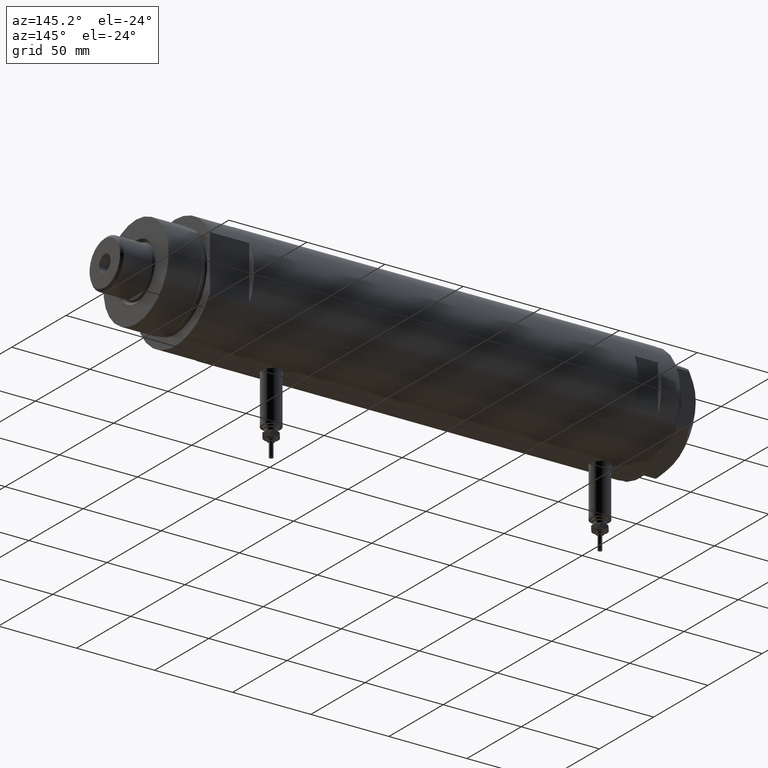
[diagram: clean part render]
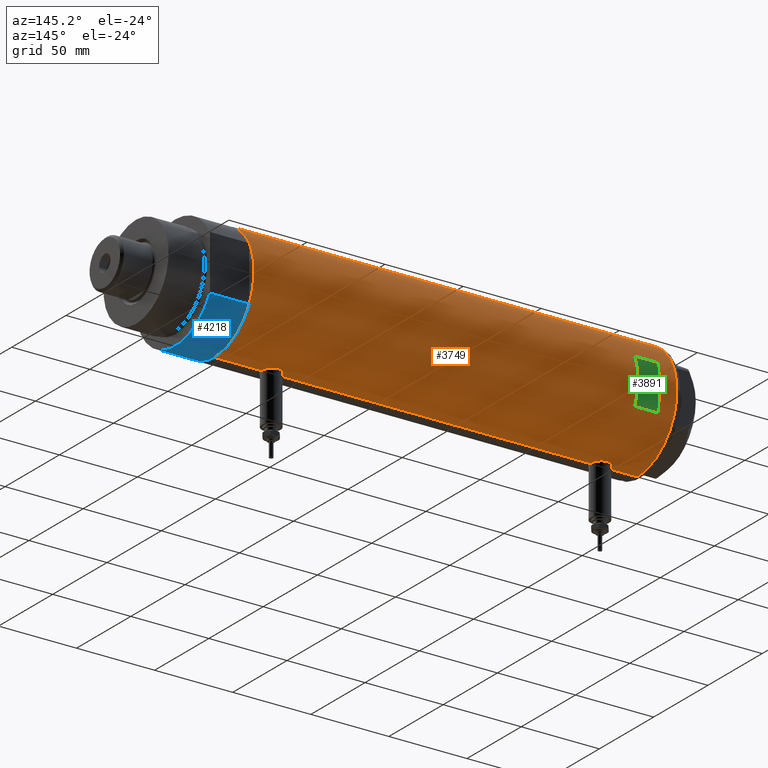
[diagram: same view with three faces highlighted in distinct colors, each labeled with its STEP entity id]
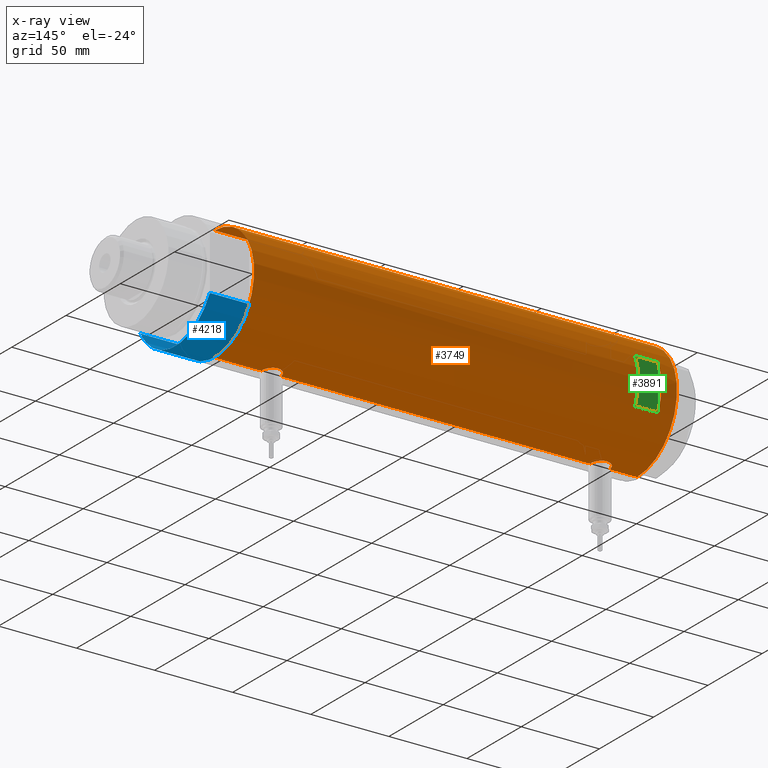
[diagram: x-ray of the same camera — body ghosted, the three highlighted faces saturated]
A machine part, auxiliary view with three faces highlighted in distinct colors.
The next image is the same camera in x-ray (body ghosted, the three faces saturated) — at least one of them is partly hidden behind the body in this view.
Their STEP definitions:

[orange] entity #3749 — the highlighted cylindrical surface (partial cylindrical patch) has radius 36.5 mm, axis along (-1, -0, 0).
#34 = CARTESIAN_POINT ( 'NONE',  ( -36.01679413914729366, 5.919813138266330377, 113.4149969104704070 ) ) ;
#36 = EDGE_CURVE ( 'NONE', #5706, #3498, #2652, .T. ) ;
#58 = CARTESIAN_POINT ( 'NONE',  ( -36.50000000000000000, 4.469960816887838430E-15, -135.4000000000000057 ) ) ;
#59 = CARTESIAN_POINT ( 'NONE',  ( -36.09617453667821252, 5.415318599347967776, 114.5270664267291068 ) ) ;
#67 = DIRECTION ( 'NONE',  ( 1.000000000000000000, 0.000000000000000000, 0.000000000000000000 ) ) ;
#69 = ORIENTED_EDGE ( 'NONE', *, *, #3238, .T. ) ;
#76 = CARTESIAN_POINT ( 'NONE',  ( -36.50000000000000000, 4.469960816887838430E-15, -135.4000000000000057 ) ) ;
#104 = LINE ( 'NONE', #5121, #1247 ) ;
#156 = CARTESIAN_POINT ( 'NONE',  ( 35.29999999999999716, 9.282241108697837362, 114.1202150475476316 ) ) ;
#186 = VERTEX_POINT ( 'NONE', #3992 ) ;
#193 = CARTESIAN_POINT ( 'NONE',  ( 0.000000000000000000, 0.000000000000000000, -135.4000000000000057 ) ) ;
#228 = EDGE_CURVE ( 'NONE', #4420, #3409, #774, .T. ) ;
#230 = CARTESIAN_POINT ( 'NONE',  ( 36.34070350304396868, 3.414301401755543974, 100.9976378262409327 ) ) ;
#256 = CARTESIAN_POINT ( 'NONE',  ( -36.44504802628534179, 2.011764947064737630, -93.17906355091479043 ) ) ;
#283 = AXIS2_PLACEMENT_3D ( 'NONE', #193, #2036, #2356 ) ;
#310 = ORIENTED_EDGE ( 'NONE', *, *, #4841, .T. ) ;
#317 = CARTESIAN_POINT ( 'NONE',  ( -36.36587679577595367, 3.131448301962863834, -104.5128246557361820 ) ) ;
#335 = CARTESIAN_POINT ( 'NONE',  ( 36.48988646280794512, 0.9921857666168139023, 120.3632811513442249 ) ) ;
#372 = CARTESIAN_POINT ( 'NONE',  ( 35.83170458557578542, 6.955065627744199119, -83.41058328087534335 ) ) ;
#373 = VECTOR ( 'NONE', #2858, 1000.000000000000000 ) ;
#388 = EDGE_CURVE ( 'NONE', #1485, #5266, #5818, .T. ) ;
#392 = CARTESIAN_POINT ( 'NONE',  ( -36.49999999999999289, 0.4083036190459308212, 105.1499999999999773 ) ) ;
#402 = CARTESIAN_POINT ( 'NONE',  ( 36.13018480315372472, 5.199168368309159405, -99.15646498208049309 ) ) ;
#407 = CARTESIAN_POINT ( 'NONE',  ( 36.50000000000000000, 0.000000000000000000, -135.4000000000000057 ) ) ;
#423 = CARTESIAN_POINT ( 'NONE',  ( -36.46598788992680085, 1.625721481788714895, 105.3512795328616249 ) ) ;
#440 = CARTESIAN_POINT ( 'NONE',  ( 36.50000000000000000, 0.000000000000000000, -135.4000000000000057 ) ) ;
#441 = EDGE_CURVE ( 'NONE', #2783, #5706, #2937, .T. ) ;
#477 = CARTESIAN_POINT ( 'NONE',  ( -36.35033317675380005, 3.306376218664579536, 106.0922928058394632 ) ) ;
#507 = CARTESIAN_POINT ( 'NONE',  ( -36.36688032967140316, 3.133094607697482825, 116.8233643263751134 ) ) ;
#515 = CARTESIAN_POINT ( 'NONE',  ( 0.000000000000000000, 0.000000000000000000, -135.4000000000000057 ) ) ;
#536 = EDGE_CURVE ( 'NONE', #186, #4674, #3697, .T. ) ;
#538 = CARTESIAN_POINT ( 'NONE',  ( 36.49999999999999289, 0.4961820988516178477, -80.59999999999998010 ) ) ;
#550 = EDGE_LOOP ( 'NONE', ( #2661, #4757, #3390, #1342 ) ) ;
#570 = CARTESIAN_POINT ( 'NONE',  ( 36.45954139109321801, 1.735915671103595681, -80.74863218852991054 ) ) ;
#652 = CARTESIAN_POINT ( 'NONE',  ( -36.47290054070997201, 1.420408912806973678, 117.4898698166001338 ) ) ;
#663 = AXIS2_PLACEMENT_3D ( 'NONE', #515, #4189, #67 ) ;
#673 = CARTESIAN_POINT ( 'NONE',  ( 36.45853166336080875, 1.985123042546145022, 100.5483732958226284 ) ) ;
#685 = EDGE_LOOP ( 'NONE', ( #69, #5350, #796, #310, #2423, #2203, #2155, #3178, #4937, #1431, #4490, #1675, #2591, #1403, #887, #3848 ) ) ;
#700 = CARTESIAN_POINT ( 'NONE',  ( -36.39638105034455151, 2.774378062517171006, -93.48456667300897038 ) ) ;
#721 = LINE ( 'NONE', #1125, #3954 ) ;
#759 = CARTESIAN_POINT ( 'NONE',  ( -36.19624103943463922, 4.708090268046848159, -94.96938778553862903 ) ) ;
#760 = CARTESIAN_POINT ( 'NONE',  ( 35.29999999999999716, 9.282241108697837362, 106.6797849524523656 ) ) ;
#774 = B_SPLINE_CURVE_WITH_KNOTS ( 'NONE', 3,
 ( #2156, #1111, #5701, #652, #1595, #5339, #1226, #3222, #507, #2285, #3620, #2767, #5019, #5045, #59, #2260, #4511, #34, #1360, #2232, #5890, #2798, #1868, #4632, #928, #4180, #5476, #1388, #4602, #3130, #4545, #4155, #4569, #5073, #477, #2340, #3678, #958, #1896, #423, #2678, #392, #4066 ),
 .UNSPECIFIED., .F., .F.,
 ( 4, 2, 2, 2, 2, 2, 2, 2, 1, 2, 2, 2, 2, 2, 2, 2, 2, 2, 2, 2, 2, 4 ),
 ( 1.558294008431693624E-18, 0.001223527801214140684, 0.001835291701821213954, 0.002447055602428288307, 0.003670583403642434413, 0.004894111204856580084, 0.006117639006070725756, 0.006729402906677815072, 0.007341166807284903520, 0.007952930707891993703, 0.008564694608499082151, 0.009788222409713260783, 0.01101175021092743941, 0.01223527801214161631, 0.01284704191274868568, 0.01345880581335575504, 0.01468233361456989725, 0.01590586141578403945, 0.01651762531639110881, 0.01712938921699818165, 0.01835291701821230650, 0.01957644481942643136 ),
 .UNSPECIFIED. ) ;
#786 = DIRECTION ( 'NONE',  ( -0.000000000000000000, -0.000000000000000000, -1.000000000000000000 ) ) ;
#791 = DIRECTION ( 'NONE',  ( 0.000000000000000000, 0.000000000000000000, 1.000000000000000000 ) ) ;
#793 = CARTESIAN_POINT ( 'NONE',  ( -35.98846897517730525, 6.089479646546502423, -97.67765108453481560 ) ) ;
#796 = ORIENTED_EDGE ( 'NONE', *, *, #5334, .F. ) ;
#800 = CARTESIAN_POINT ( 'NONE',  ( 0.000000000000000000, 0.000000000000000000, 110.3999999999999773 ) ) ;
#816 = CARTESIAN_POINT ( 'NONE',  ( 35.29999999999999716, 9.282241108697837362, -94.32021504754762020 ) ) ;
#817 = CARTESIAN_POINT ( 'NONE',  ( 35.72794581931695745, 7.469526493268205058, -83.94660203271737942 ) ) ;
#848 = CARTESIAN_POINT ( 'NONE',  ( 35.40502660484481368, 8.876998817796907915, -95.23098724071233789 ) ) ;
#851 = EDGE_CURVE ( 'NONE', #4119, #5266, #1217, .T. ) ;
#883 = CARTESIAN_POINT ( 'NONE',  ( 36.29611582693038940, 3.878758190381173421, -81.36955010900447860 ) ) ;
#887 = ORIENTED_EDGE ( 'NONE', *, *, #5910, .F. ) ;
#907 = CARTESIAN_POINT ( 'NONE',  ( 36.50000000000000000, 0.000000000000000000, -100.5999999999999801 ) ) ;
#928 = CARTESIAN_POINT ( 'NONE',  ( -35.99530513653993324, 6.049346314076207598, 109.7766741696416375 ) ) ;
#958 = CARTESIAN_POINT ( 'NONE',  ( -36.40902375114221456, 2.582415566883930591, 105.7047830853031058 ) ) ;
#970 = CARTESIAN_POINT ( 'NONE',  ( 36.34264078466112124, 3.418717136061403927, -81.18950965959248833 ) ) ;
#989 = CARTESIAN_POINT ( 'NONE',  ( 14.49137674618942917, 33.50000000000000000, 110.3999999999999773 ) ) ;
#1034 = CARTESIAN_POINT ( 'NONE',  ( 0.000000000000000000, 0.000000000000000000, 135.4000000000000057 ) ) ;
#1063 = B_SPLINE_CURVE_WITH_KNOTS ( 'NONE', 3,
 ( #1676, #4463, #2512, #3923, #5368, #256, #3893, #700, #4347, #1219, #3049, #759, #5748, #4918, #5717, #2152, #2065, #5779, #5275, #793, #2093, #1129, #5332, #3087, #5809, #4880, #2600, #3987, #3957, #4435, #1704, #1255, #2633, #3541, #3483, #317, #2041, #4823, #5306, #3415, #3867, #4848, #2538 ),
 .UNSPECIFIED., .F., .F.,
 ( 4, 2, 2, 2, 2, 2, 2, 2, 1, 2, 2, 2, 2, 2, 2, 2, 2, 2, 2, 2, 2, 4 ),
 ( 1.558294008431693624E-18, 0.001223527801214140684, 0.001835291701821213954, 0.002447055602428288307, 0.003670583403642434413, 0.004894111204856580084, 0.006117639006070725756, 0.006729402906677815072, 0.007341166807284903520, 0.007952930707891993703, 0.008564694608499082151, 0.009788222409713260783, 0.01101175021092743941, 0.01223527801214161631, 0.01284704191274868568, 0.01345880581335575504, 0.01468233361456989725, 0.01590586141578403945, 0.01651762531639110881, 0.01712938921699818165, 0.01835291701821230650, 0.01957644481942643136 ),
 .UNSPECIFIED. ) ;
#1111 = CARTESIAN_POINT ( 'NONE',  ( -36.50000000000000000, 0.4137727629436737664, 117.6500000000000057 ) ) ;
#1125 = CARTESIAN_POINT ( 'NONE',  ( 35.29999999999999716, 9.282241108697837362, -135.4000000000000057 ) ) ;
#1129 = CARTESIAN_POINT ( 'NONE',  ( -35.96094343308265451, 6.249843792257633091, -98.68912889655430831 ) ) ;
#1154 = AXIS2_PLACEMENT_3D ( 'NONE', #5557, #786, #1867 ) ;
#1190 = CARTESIAN_POINT ( 'NONE',  ( 35.93456089024232369, 6.410413305453381838, 102.7091403679585397 ) ) ;
#1217 = B_SPLINE_CURVE_WITH_KNOTS ( 'NONE', 3,
 ( #3510, #3484, #673, #4348, #230, #1586, #2539, #3924, #5307, #3542, #1190, #3088, #1256, #2123, #3958, #2153, #2066, #760 ),
 .UNSPECIFIED., .F., .F.,
 ( 4, 2, 2, 2, 2, 2, 2, 2, 4 ),
 ( 1.734723475976807094E-18, 0.002973648994175672518, 0.003717061242719596394, 0.004460473491263520704, 0.005947297988351386670, 0.007434122485439251769, 0.008920946982527117736, 0.01040777147961498283, 0.01189459597670284793 ),
 .UNSPECIFIED. ) ;
#1219 = CARTESIAN_POINT ( 'NONE',  ( -36.30200038006936580, 3.811959488093743520, -94.13027895163997982 ) ) ;
#1226 = CARTESIAN_POINT ( 'NONE',  ( -36.43371204571226230, 2.206934156026287841, 117.2509728167099468 ) ) ;
#1242 = CARTESIAN_POINT ( 'NONE',  ( 36.29611582693038940, 3.878758190381173421, 119.6304498909954930 ) ) ;
#1247 = VECTOR ( 'NONE', #4254, 1000.000000000000000 ) ;
#1255 = CARTESIAN_POINT ( 'NONE',  ( -36.19597718496778072, 4.710322426433902976, -103.2285161076201518 ) ) ;
#1256 = CARTESIAN_POINT ( 'NONE',  ( 35.72860827204725354, 7.471059959301281417, 103.7347484952559284 ) ) ;
#1309 = CARTESIAN_POINT ( 'NONE',  ( 36.50000000000000711, 1.005842003469123336, -100.5999999999999943 ) ) ;
#1336 = CARTESIAN_POINT ( 'NONE',  ( 35.72794581931695745, 7.469526493268205058, 117.0533979672826490 ) ) ;
#1342 = ORIENTED_EDGE ( 'NONE', *, *, #36, .F. ) ;
#1360 = CARTESIAN_POINT ( 'NONE',  ( -35.99700617875953412, 6.038972911021586398, 113.0233318579832229 ) ) ;
#1388 = CARTESIAN_POINT ( 'NONE',  ( -36.06690560274405044, 5.606949625760674571, 108.6311407604106876 ) ) ;
#1403 = ORIENTED_EDGE ( 'NONE', *, *, #5806, .T. ) ;
#1426 = DIRECTION ( 'NONE',  ( 0.000000000000000000, 0.000000000000000000, 1.000000000000000000 ) ) ;
#1431 = ORIENTED_EDGE ( 'NONE', *, *, #388, .T. ) ;
#1464 = CIRCLE ( 'NONE', #3675, 36.50000000000000000 ) ;
#1480 = VERTEX_POINT ( 'NONE', #4275 ) ;
#1483 = CARTESIAN_POINT ( 'NONE',  ( 36.48988646280794512, 0.9921857666168139023, -80.63671884865571826 ) ) ;
#1485 = VERTEX_POINT ( 'NONE', #3914 ) ;
#1487 = EDGE_CURVE ( 'NONE', #1485, #186, #3944, .T. ) ;
#1513 = VERTEX_POINT ( 'NONE', #3597 ) ;
#1539 = CARTESIAN_POINT ( 'NONE',  ( -36.50000000000000000, 4.469960816887838430E-15, -135.4000000000000057 ) ) ;
#1586 = CARTESIAN_POINT ( 'NONE',  ( 36.29420020483473053, 3.877527130731370342, 101.1790102559971132 ) ) ;
#1595 = CARTESIAN_POINT ( 'NONE',  ( -36.46462099658055678, 1.618684470865507041, 117.4402439702484742 ) ) ;
#1608 = CARTESIAN_POINT ( 'NONE',  ( 14.49137674618942739, 33.50000000000000000, 125.3999999999999773 ) ) ;
#1618 = VECTOR ( 'NONE', #791, 1000.000000000000000 ) ;
#1675 = ORIENTED_EDGE ( 'NONE', *, *, #3728, .F. ) ;
#1676 = CARTESIAN_POINT ( 'NONE',  ( -36.50000000000000000, 1.603939656238031057E-15, -92.84999999999999432 ) ) ;
#1690 = CARTESIAN_POINT ( 'NONE',  ( 36.50000000000000000, 0.000000000000000000, -100.5999999999999801 ) ) ;
#1704 = CARTESIAN_POINT ( 'NONE',  ( -36.16083474549355259, 4.969527450313384165, -102.9120531912274998 ) ) ;
#1725 = CARTESIAN_POINT ( 'NONE',  ( 36.34264078466112124, 3.418717136061403927, 119.8104903404075401 ) ) ;
#1765 = CARTESIAN_POINT ( 'NONE',  ( 36.18948008481302026, 4.772042575486208804, -99.40177631243155076 ) ) ;
#1792 = CARTESIAN_POINT ( 'NONE',  ( 35.93435287561198521, 6.411571491280768420, -82.91011355077159806 ) ) ;
#1817 = CARTESIAN_POINT ( 'NONE',  ( 36.45954139109321801, 1.735915671103595681, 120.2513678114701321 ) ) ;
#1822 = CARTESIAN_POINT ( 'NONE',  ( 36.34070350304396868, 3.414301401755543974, -100.0023621737590531 ) ) ;
#1867 = DIRECTION ( 'NONE',  ( 1.000000000000000000, 1.776356839400250465E-15, 0.000000000000000000 ) ) ;
#1868 = CARTESIAN_POINT ( 'NONE',  ( -35.96088929326157313, 6.250155299092687855, 110.9938950523675345 ) ) ;
#1896 = CARTESIAN_POINT ( 'NONE',  ( -36.44628644024909647, 2.015372769639941275, 105.4697187198641615 ) ) ;
#1937 = CYLINDRICAL_SURFACE ( 'NONE', #663, 36.50000000000000000 ) ;
#1983 = AXIS2_PLACEMENT_3D ( 'NONE', #800, #2639, #4469 ) ;
#2007 = CARTESIAN_POINT ( 'NONE',  ( 35.29999999999999716, 9.282241108697837362, 106.6797849524523656 ) ) ;
#2036 = DIRECTION ( 'NONE',  ( 0.000000000000000000, 0.000000000000000000, 1.000000000000000000 ) ) ;
#2041 = CARTESIAN_POINT ( 'NONE',  ( -36.39522946636253664, 2.769519034821242176, -104.7066392373127002 ) ) ;
#2065 = CARTESIAN_POINT ( 'NONE',  ( -36.03936508729894683, 5.782103729777505308, -96.70129467396202472 ) ) ;
#2066 = CARTESIAN_POINT ( 'NONE',  ( 35.34894515018992678, 9.096104616284845790, 106.2153591653345615 ) ) ;
#2093 = CARTESIAN_POINT ( 'NONE',  ( -35.96793274302675059, 6.210029014836887740, -98.28305762320681538 ) ) ;
#2101 = EDGE_CURVE ( 'NONE', #2565, #3911, #3662, .T. ) ;
#2119 = CIRCLE ( 'NONE', #1154, 36.50000000000000000 ) ;
#2123 = CARTESIAN_POINT ( 'NONE',  ( 35.59366931936805400, 8.089554397885871495, 104.5007268091218862 ) ) ;
#2152 = CARTESIAN_POINT ( 'NONE',  ( -36.06675137892952421, 5.607935153446978127, -96.33318173991244748 ) ) ;
#2153 = CARTESIAN_POINT ( 'NONE',  ( 35.40502660484481368, 8.876998817796907915, 105.7690127592876621 ) ) ;
#2155 = ORIENTED_EDGE ( 'NONE', *, *, #5649, .F. ) ;
#2156 = CARTESIAN_POINT ( 'NONE',  ( -36.50000000000000000, 1.603939656238031057E-15, 117.6500000000000057 ) ) ;
#2201 = CARTESIAN_POINT ( 'NONE',  ( -14.49137674618942739, 33.50000000000000000, -135.4000000000000057 ) ) ;
#2203 = ORIENTED_EDGE ( 'NONE', *, *, #2450, .T. ) ;
#2232 = CARTESIAN_POINT ( 'NONE',  ( -35.98846897517730525, 6.089479646546502423, 112.8223489154652128 ) ) ;
#2260 = CARTESIAN_POINT ( 'NONE',  ( -36.06675137892952421, 5.607935153446978127, 114.1668182600875809 ) ) ;
#2263 = VERTEX_POINT ( 'NONE', #5802 ) ;
#2264 = CARTESIAN_POINT ( 'NONE',  ( 35.69321149401851301, 7.633476302278308978, 116.8646307216643976 ) ) ;
#2266 = CARTESIAN_POINT ( 'NONE',  ( 35.29999999999999716, 9.282241108697837362, -94.32021504754762020 ) ) ;
#2285 = CARTESIAN_POINT ( 'NONE',  ( -36.30200038006936580, 3.811959488093743520, 116.3697210483601054 ) ) ;
#2340 = CARTESIAN_POINT ( 'NONE',  ( -36.36587679577595367, 3.131448301962863834, 105.9871753442638038 ) ) ;
#2356 = DIRECTION ( 'NONE',  ( 1.000000000000000000, 0.000000000000000000, 0.000000000000000000 ) ) ;
#2377 = VERTEX_POINT ( 'NONE', #2266 ) ;
#2407 = CARTESIAN_POINT ( 'NONE',  ( 36.41717583764486932, 2.469534783404761402, -80.90651988824329521 ) ) ;
#2423 = ORIENTED_EDGE ( 'NONE', *, *, #228, .F. ) ;
#2450 = EDGE_CURVE ( 'NONE', #4420, #5263, #3820, .T. ) ;
#2451 = CARTESIAN_POINT ( 'NONE',  ( -36.50000000000000000, 4.469960816887838430E-15, -135.4000000000000057 ) ) ;
#2512 = CARTESIAN_POINT ( 'NONE',  ( -36.49297130294515057, 0.8204796224394291793, -92.89068307782267198 ) ) ;
#2538 = CARTESIAN_POINT ( 'NONE',  ( -36.50000000000000000, 4.469960493350315609E-15, -105.3499999999999943 ) ) ;
#2539 = CARTESIAN_POINT ( 'NONE',  ( 36.26917563968160607, 4.104523505324181087, 101.2778401163252653 ) ) ;
#2559 = CARTESIAN_POINT ( 'NONE',  ( -36.50000000000000000, 1.603939656238031057E-15, 117.6500000000000057 ) ) ;
#2565 = VERTEX_POINT ( 'NONE', #3938 ) ;
#2591 = ORIENTED_EDGE ( 'NONE', *, *, #3628, .F. ) ;
#2600 = CARTESIAN_POINT ( 'NONE',  ( -36.05296344941216091, 5.695624845616832133, -101.6815485653675495 ) ) ;
#2627 = CARTESIAN_POINT ( 'NONE',  ( 36.00287854058830561, 6.017835360302999703, -98.60188117181722589 ) ) ;
#2633 = CARTESIAN_POINT ( 'NONE',  ( -36.26695135241003953, 4.128455078791301247, -103.8103759164473558 ) ) ;
#2639 = DIRECTION ( 'NONE',  ( -0.000000000000000000, -0.000000000000000000, 1.000000000000000000 ) ) ;
#2652 = LINE ( 'NONE', #2201, #3626 ) ;
#2653 = CARTESIAN_POINT ( 'NONE',  ( 36.49999999999999289, 0.4961820988516178477, 120.3999999999999631 ) ) ;
#2661 = ORIENTED_EDGE ( 'NONE', *, *, #441, .F. ) ;
#2668 = CARTESIAN_POINT ( 'NONE',  ( -36.50000000000000000, 1.603939656238031057E-15, -92.84999999999999432 ) ) ;
#2678 = CARTESIAN_POINT ( 'NONE',  ( -36.49292802938585822, 0.8230716655928924652, 105.1909306124648538 ) ) ;
#2686 = CARTESIAN_POINT ( 'NONE',  ( 35.83170458557578542, 6.955065627744199119, 117.5894167191246282 ) ) ;
#2747 = CARTESIAN_POINT ( 'NONE',  ( 35.93456089024232369, 6.410413305453381838, -98.29085963204141763 ) ) ;
#2767 = CARTESIAN_POINT ( 'NONE',  ( -36.19624103943463922, 4.708090268046848159, 115.5306122144614136 ) ) ;
#2783 = VERTEX_POINT ( 'NONE', #989 ) ;
#2798 = CARTESIAN_POINT ( 'NONE',  ( -35.96094343308265451, 6.249843792257633091, 111.8108711034456917 ) ) ;
#2858 = DIRECTION ( 'NONE',  ( 0.000000000000000000, 0.000000000000000000, 1.000000000000000000 ) ) ;
#2926 = B_SPLINE_CURVE_WITH_KNOTS ( 'NONE', 3,
 ( #907, #1309, #4941, #3174, #1822, #3656, #4099, #1765, #402, #2627, #2747, #5457, #3630, #5486, #3601, #848, #5837, #816 ),
 .UNSPECIFIED., .F., .F.,
 ( 4, 2, 2, 2, 2, 2, 2, 2, 4 ),
 ( 1.734723475976807094E-18, 0.002973648994175672518, 0.003717061242719596394, 0.004460473491263520704, 0.005947297988351386670, 0.007434122485439251769, 0.008920946982527117736, 0.01040777147961498283, 0.01189459597670284793 ),
 .UNSPECIFIED. ) ;
#2937 = CIRCLE ( 'NONE', #1983, 36.50000000000000000 ) ;
#2982 = VERTEX_POINT ( 'NONE', #2668 ) ;
#3049 = CARTESIAN_POINT ( 'NONE',  ( -36.26643311080166399, 4.132772529026635944, -94.39380594730116059 ) ) ;
#3087 = CARTESIAN_POINT ( 'NONE',  ( -35.96805604460922723, 6.209309709790234777, -99.92112758268173422 ) ) ;
#3088 = CARTESIAN_POINT ( 'NONE',  ( 35.79766710091575987, 7.135341284989891619, 103.3764947943909647 ) ) ;
#3114 = CARTESIAN_POINT ( 'NONE',  ( 35.39804469700249001, 8.909380959553011792, -85.94946835517158945 ) ) ;
#3130 = CARTESIAN_POINT ( 'NONE',  ( -36.11206433103227198, 5.308658295084048184, 108.0951535195902409 ) ) ;
#3171 = CARTESIAN_POINT ( 'NONE',  ( 36.44688397185920081, 1.983417953489138741, 120.2044995764825472 ) ) ;
#3174 = CARTESIAN_POINT ( 'NONE',  ( 36.36225053217120973, 3.177096004138049601, -100.0851602447597770 ) ) ;
#3178 = ORIENTED_EDGE ( 'NONE', *, *, #536, .F. ) ;
#3222 = CARTESIAN_POINT ( 'NONE',  ( -36.39638105034455151, 2.774378062517171006, 117.0154333269910296 ) ) ;
#3238 = EDGE_CURVE ( 'NONE', #2565, #4626, #4606, .T. ) ;
#3251 = EDGE_CURVE ( 'NONE', #5715, #2783, #104, .T. ) ;
#3256 = FACE_BOUND ( 'NONE', #550, .T. ) ;
#3265 = VECTOR ( 'NONE', #1426, 1000.000000000000000 ) ;
#3313 = FACE_OUTER_BOUND ( 'NONE', #685, .T. ) ;
#3347 = EDGE_CURVE ( 'NONE', #4626, #1513, #4648, .T. ) ;
#3390 = ORIENTED_EDGE ( 'NONE', *, *, #4630, .F. ) ;
#3409 = VERTEX_POINT ( 'NONE', #4876 ) ;
#3415 = CARTESIAN_POINT ( 'NONE',  ( -36.46598788992680085, 1.625721481788714895, -105.1487204671383608 ) ) ;
#3483 = CARTESIAN_POINT ( 'NONE',  ( -36.35033317675380005, 3.306376218664579536, -104.4077071941605084 ) ) ;
#3484 = CARTESIAN_POINT ( 'NONE',  ( 36.50000000000000711, 1.005842003469123336, 100.4000000000000199 ) ) ;
#3489 = CARTESIAN_POINT ( 'NONE',  ( 35.29999999999999716, 9.282241108697837362, -135.4000000000000057 ) ) ;
#3498 = VERTEX_POINT ( 'NONE', #3890 ) ;
#3510 = CARTESIAN_POINT ( 'NONE',  ( 36.50000000000000000, 0.000000000000000000, 100.4000000000000057 ) ) ;
#3534 = CARTESIAN_POINT ( 'NONE',  ( -14.49137674618942917, 33.50000000000000000, 110.3999999999999773 ) ) ;
#3541 = CARTESIAN_POINT ( 'NONE',  ( -36.30181775639987052, 3.813582387016785091, -104.0683605757443360 ) ) ;
#3542 = CARTESIAN_POINT ( 'NONE',  ( 36.00287854058830561, 6.017835360302999703, 102.3981188281827457 ) ) ;
#3597 = CARTESIAN_POINT ( 'NONE',  ( -36.50000000000000000, 4.469960493350315609E-15, -105.3499999999999943 ) ) ;
#3601 = CARTESIAN_POINT ( 'NONE',  ( 35.52737867031126484, 8.373910777960906771, -96.08860356717065088 ) ) ;
#3603 = B_SPLINE_CURVE_WITH_KNOTS ( 'NONE', 3,
 ( #5399, #3114, #4942, #5870, #817, #5929, #372, #1792, #3631, #5458, #5003, #883, #970, #5567, #2407, #4641, #570, #1483, #538, #4692 ),
 .UNSPECIFIED., .F., .F.,
 ( 4, 2, 2, 2, 2, 2, 2, 2, 2, 4 ),
 ( 0.000000000000000000, 0.002977391289382919342, 0.003721739111728640179, 0.004466086934074362316, 0.005954782578765775367, 0.007443478223457188417, 0.008932173868148601467, 0.009676521690494316666, 0.01042086951284003013, 0.01190956515753145012 ),
 .UNSPECIFIED. ) ;
#3620 = CARTESIAN_POINT ( 'NONE',  ( -36.26643311080166399, 4.132772529026635944, 116.1061940526988252 ) ) ;
#3626 = VECTOR ( 'NONE', #4039, 1000.000000000000000 ) ;
#3628 = EDGE_CURVE ( 'NONE', #2263, #1480, #3603, .T. ) ;
#3630 = CARTESIAN_POINT ( 'NONE',  ( 35.72860827204725354, 7.471059959301281417, -97.26525150474412840 ) ) ;
#3631 = CARTESIAN_POINT ( 'NONE',  ( 36.00145998247696610, 6.026272765084661032, -82.60449611787612412 ) ) ;
#3653 = CARTESIAN_POINT ( 'NONE',  ( 35.93435287561198521, 6.411571491280768420, 118.0898864492284304 ) ) ;
#3656 = CARTESIAN_POINT ( 'NONE',  ( 36.29420020483473053, 3.877527130731370342, -99.82098974400290103 ) ) ;
#3662 = LINE ( 'NONE', #407, #1618 ) ;
#3675 = AXIS2_PLACEMENT_3D ( 'NONE', #1034, #4647, #5120 ) ;
#3678 = CARTESIAN_POINT ( 'NONE',  ( -36.39522946636253664, 2.769519034821242176, 105.7933607626872288 ) ) ;
#3697 = LINE ( 'NONE', #440, #5446 ) ;
#3728 = EDGE_CURVE ( 'NONE', #1480, #4119, #4216, .T. ) ;
#3748 = DIRECTION ( 'NONE',  ( 0.000000000000000000, 0.000000000000000000, 1.000000000000000000 ) ) ;
#3749 = ADVANCED_FACE ( 'NONE', ( #3256, #3313 ), #1937, .T. ) ;
#3760 = VECTOR ( 'NONE', #5251, 1000.000000000000000 ) ;
#3820 = LINE ( 'NONE', #1539, #373 ) ;
#3848 = ORIENTED_EDGE ( 'NONE', *, *, #2101, .F. ) ;
#3867 = CARTESIAN_POINT ( 'NONE',  ( -36.49292802938585822, 0.8230716655928924652, -105.3090693875351178 ) ) ;
#3890 = CARTESIAN_POINT ( 'NONE',  ( -14.49137674618942739, 33.50000000000000000, 125.3999999999999773 ) ) ;
#3893 = CARTESIAN_POINT ( 'NONE',  ( -36.43371204571226230, 2.206934156026287841, -93.24902718329002482 ) ) ;
#3911 = VERTEX_POINT ( 'NONE', #1690 ) ;
#3914 = CARTESIAN_POINT ( 'NONE',  ( 35.29999999999999716, 9.282241108697837362, 114.1202150475476316 ) ) ;
#3923 = CARTESIAN_POINT ( 'NONE',  ( -36.47290054070997201, 1.420408912806973678, -93.01013018339983773 ) ) ;
#3924 = CARTESIAN_POINT ( 'NONE',  ( 36.18948008481302026, 4.772042575486208804, 101.5982236875684208 ) ) ;
#3938 = CARTESIAN_POINT ( 'NONE',  ( 36.50000000000000000, 0.000000000000000000, -135.4000000000000057 ) ) ;
#3944 = B_SPLINE_CURVE_WITH_KNOTS ( 'NONE', 3,
 ( #156, #5739, #5297, #2264, #1336, #4095, #2686, #3653, #4936, #5355, #4452, #1242, #1725, #5392, #4549, #3171, #1817, #335, #2653, #4482 ),
 .UNSPECIFIED., .F., .F.,
 ( 4, 2, 2, 2, 2, 2, 2, 2, 2, 4 ),
 ( 0.000000000000000000, 0.002977391289382919342, 0.003721739111728640179, 0.004466086934074362316, 0.005954782578765775367, 0.007443478223457188417, 0.008932173868148601467, 0.009676521690494316666, 0.01042086951284003013, 0.01190956515753145012 ),
 .UNSPECIFIED. ) ;
#3954 = VECTOR ( 'NONE', #5270, 1000.000000000000000 ) ;
#3957 = CARTESIAN_POINT ( 'NONE',  ( -36.09643313249890184, 5.413601294342275771, -102.2300777339185061 ) ) ;
#3958 = CARTESIAN_POINT ( 'NONE',  ( 35.52737867031126484, 8.373910777960906771, 104.9113964328293065 ) ) ;
#3987 = CARTESIAN_POINT ( 'NONE',  ( -36.06690560274405044, 5.606949625760674571, -101.8688592395893124 ) ) ;
#3992 = CARTESIAN_POINT ( 'NONE',  ( 36.50000000000000000, 4.344614706140975428E-19, 120.3999999999999915 ) ) ;
#4039 = DIRECTION ( 'NONE',  ( 0.000000000000000000, 0.000000000000000000, 1.000000000000000000 ) ) ;
#4066 = CARTESIAN_POINT ( 'NONE',  ( -36.50000000000000000, 4.469960493350315609E-15, 105.1499999999999915 ) ) ;
#4095 = CARTESIAN_POINT ( 'NONE',  ( 35.79715675463678792, 7.130463293899340194, 117.4155558410599411 ) ) ;
#4099 = CARTESIAN_POINT ( 'NONE',  ( 36.26917563968160607, 4.104523505324181087, -99.72215988367473471 ) ) ;
#4119 = VERTEX_POINT ( 'NONE', #4605 ) ;
#4155 = CARTESIAN_POINT ( 'NONE',  ( -36.19597718496778072, 4.710322426433902976, 107.2714838923798482 ) ) ;
#4180 = CARTESIAN_POINT ( 'NONE',  ( -36.01524716445113938, 5.931039972055515364, 109.3866926813534661 ) ) ;
#4189 = DIRECTION ( 'NONE',  ( 0.000000000000000000, 0.000000000000000000, 1.000000000000000000 ) ) ;
#4216 = LINE ( 'NONE', #5206, #3265 ) ;
#4254 = DIRECTION ( 'NONE',  ( -0.000000000000000000, -0.000000000000000000, -1.000000000000000000 ) ) ;
#4275 = CARTESIAN_POINT ( 'NONE',  ( 36.50000000000000000, 4.344614706140975428E-19, -80.59999999999999432 ) ) ;
#4347 = CARTESIAN_POINT ( 'NONE',  ( -36.36688032967140316, 3.133094607697482825, -93.67663567362490085 ) ) ;
#4348 = CARTESIAN_POINT ( 'NONE',  ( 36.36225053217120973, 3.177096004138049601, 100.9148397552402088 ) ) ;
#4420 = VERTEX_POINT ( 'NONE', #2559 ) ;
#4435 = CARTESIAN_POINT ( 'NONE',  ( -36.11206433103227198, 5.308658295084048184, -102.4048464804097591 ) ) ;
#4452 = CARTESIAN_POINT ( 'NONE',  ( 36.18937351723702278, 4.773052864917646687, 119.2013599311883922 ) ) ;
#4463 = CARTESIAN_POINT ( 'NONE',  ( -36.50000000000000000, 0.4137727629436737664, -92.85000000000000853 ) ) ;
#4469 = DIRECTION ( 'NONE',  ( -1.000000000000000000, -1.776356839400250465E-15, 0.000000000000000000 ) ) ;
#4482 = CARTESIAN_POINT ( 'NONE',  ( 36.50000000000000000, 4.344614706140975428E-19, 120.3999999999999915 ) ) ;
#4490 = ORIENTED_EDGE ( 'NONE', *, *, #851, .F. ) ;
#4511 = CARTESIAN_POINT ( 'NONE',  ( -36.03936508729894683, 5.782103729777505308, 113.7987053260379611 ) ) ;
#4545 = CARTESIAN_POINT ( 'NONE',  ( -36.16083474549355259, 4.969527450313384165, 107.5879468087725144 ) ) ;
#4549 = CARTESIAN_POINT ( 'NONE',  ( 36.41717583764486932, 2.469534783404761402, 120.0934801117567048 ) ) ;
#4569 = CARTESIAN_POINT ( 'NONE',  ( -36.26695135241003953, 4.128455078791301247, 106.6896240835525163 ) ) ;
#4602 = CARTESIAN_POINT ( 'NONE',  ( -36.09643313249890184, 5.413601294342275771, 108.2699222660814797 ) ) ;
#4605 = CARTESIAN_POINT ( 'NONE',  ( 36.50000000000000000, 0.000000000000000000, 100.4000000000000057 ) ) ;
#4606 = CIRCLE ( 'NONE', #283, 36.50000000000000000 ) ;
#4626 = VERTEX_POINT ( 'NONE', #58 ) ;
#4630 = EDGE_CURVE ( 'NONE', #3498, #5715, #2119, .T. ) ;
#4632 = CARTESIAN_POINT ( 'NONE',  ( -35.96805604460922723, 6.209309709790234777, 110.5788724173182942 ) ) ;
#4641 = CARTESIAN_POINT ( 'NONE',  ( 36.44688397185920081, 1.983417953489138741, -80.79550042351748118 ) ) ;
#4647 = DIRECTION ( 'NONE',  ( 0.000000000000000000, 0.000000000000000000, 1.000000000000000000 ) ) ;
#4648 = LINE ( 'NONE', #76, #5173 ) ;
#4674 = VERTEX_POINT ( 'NONE', #5103 ) ;
#4692 = CARTESIAN_POINT ( 'NONE',  ( 36.50000000000000000, 4.344614706140975428E-19, -80.59999999999999432 ) ) ;
#4757 = ORIENTED_EDGE ( 'NONE', *, *, #3251, .F. ) ;
#4823 = CARTESIAN_POINT ( 'NONE',  ( -36.40902375114221456, 2.582415566883930591, -104.7952169146968515 ) ) ;
#4841 = EDGE_CURVE ( 'NONE', #2982, #3409, #5128, .T. ) ;
#4848 = CARTESIAN_POINT ( 'NONE',  ( -36.49999999999999289, 0.4083036190459308212, -105.3499999999999801 ) ) ;
#4876 = CARTESIAN_POINT ( 'NONE',  ( -36.50000000000000000, 4.469960493350315609E-15, 105.1499999999999915 ) ) ;
#4880 = CARTESIAN_POINT ( 'NONE',  ( -36.01524716445113938, 5.931039972055515364, -101.1133073186465623 ) ) ;
#4918 = CARTESIAN_POINT ( 'NONE',  ( -36.11199073531170001, 5.309184630646994307, -95.79587159233167881 ) ) ;
#4925 = DIRECTION ( 'NONE',  ( -0.000000000000000000, -0.000000000000000000, -1.000000000000000000 ) ) ;
#4936 = CARTESIAN_POINT ( 'NONE',  ( 36.00145998247696610, 6.026272765084661032, 118.3955038821238759 ) ) ;
#4937 = ORIENTED_EDGE ( 'NONE', *, *, #1487, .F. ) ;
#4941 = CARTESIAN_POINT ( 'NONE',  ( 36.45853166336080875, 1.985123042546145022, -100.4516267041773432 ) ) ;
#4942 = CARTESIAN_POINT ( 'NONE',  ( 35.52347503888660896, 8.410566959990466884, -85.10046032740658006 ) ) ;
#5003 = CARTESIAN_POINT ( 'NONE',  ( 36.18937351723702278, 4.773052864917646687, -81.79864006881155092 ) ) ;
#5019 = CARTESIAN_POINT ( 'NONE',  ( -36.16126303108062956, 4.966520032693302333, 115.2164122774528181 ) ) ;
#5045 = CARTESIAN_POINT ( 'NONE',  ( -36.11199073531170001, 5.309184630646994307, 114.7041284076683496 ) ) ;
#5073 = CARTESIAN_POINT ( 'NONE',  ( -36.30181775639987052, 3.813582387016785091, 106.4316394242556072 ) ) ;
#5103 = CARTESIAN_POINT ( 'NONE',  ( 36.50000000000000000, 0.000000000000000000, 135.4000000000000057 ) ) ;
#5120 = DIRECTION ( 'NONE',  ( 1.000000000000000000, 0.000000000000000000, 0.000000000000000000 ) ) ;
#5121 = CARTESIAN_POINT ( 'NONE',  ( 14.49137674618942739, 33.50000000000000000, -135.4000000000000057 ) ) ;
#5128 = LINE ( 'NONE', #2451, #3760 ) ;
#5173 = VECTOR ( 'NONE', #3748, 1000.000000000000000 ) ;
#5186 = CARTESIAN_POINT ( 'NONE',  ( -36.50000000000000000, 4.469960816887838430E-15, 135.4000000000000057 ) ) ;
#5206 = CARTESIAN_POINT ( 'NONE',  ( 36.50000000000000000, 0.000000000000000000, -135.4000000000000057 ) ) ;
#5251 = DIRECTION ( 'NONE',  ( 0.000000000000000000, 0.000000000000000000, 1.000000000000000000 ) ) ;
#5263 = VERTEX_POINT ( 'NONE', #5186 ) ;
#5266 = VERTEX_POINT ( 'NONE', #2007 ) ;
#5270 = DIRECTION ( 'NONE',  ( -0.000000000000000000, -0.000000000000000000, -1.000000000000000000 ) ) ;
#5275 = CARTESIAN_POINT ( 'NONE',  ( -35.99700617875953412, 6.038972911021586398, -97.47666814201680552 ) ) ;
#5297 = CARTESIAN_POINT ( 'NONE',  ( 35.52347503888660896, 8.410566959990466884, 115.8995396725934057 ) ) ;
#5306 = CARTESIAN_POINT ( 'NONE',  ( -36.44628644024909647, 2.015372769639941275, -105.0302812801358527 ) ) ;
#5307 = CARTESIAN_POINT ( 'NONE',  ( 36.13018480315372472, 5.199168368309159405, 101.8435350179194643 ) ) ;
#5332 = CARTESIAN_POINT ( 'NONE',  ( -35.96088929326157313, 6.250155299092687855, -99.50610494763242286 ) ) ;
#5334 = EDGE_CURVE ( 'NONE', #2982, #1513, #1063, .T. ) ;
#5339 = CARTESIAN_POINT ( 'NONE',  ( -36.44504802628534179, 2.011764947064737630, 117.3209364490851669 ) ) ;
#5350 = ORIENTED_EDGE ( 'NONE', *, *, #3347, .T. ) ;
#5355 = CARTESIAN_POINT ( 'NONE',  ( 36.12877841835537396, 5.208882251161925936, 118.9505316479029062 ) ) ;
#5368 = CARTESIAN_POINT ( 'NONE',  ( -36.46462099658055678, 1.618684470865507041, -93.05975602975154004 ) ) ;
#5392 = CARTESIAN_POINT ( 'NONE',  ( 36.40008489419980720, 2.709263960908029123, 120.0291810459638668 ) ) ;
#5399 = CARTESIAN_POINT ( 'NONE',  ( 35.29999999999999716, 9.282241108697837362, -86.87978495245235422 ) ) ;
#5413 = DIRECTION ( 'NONE',  ( 0.000000000000000000, 0.000000000000000000, 1.000000000000000000 ) ) ;
#5446 = VECTOR ( 'NONE', #5413, 1000.000000000000000 ) ;
#5457 = CARTESIAN_POINT ( 'NONE',  ( 35.79766710091575987, 7.135341284989891619, -97.62350520560903533 ) ) ;
#5458 = CARTESIAN_POINT ( 'NONE',  ( 36.12877841835537396, 5.208882251161925936, -82.04946835209707956 ) ) ;
#5476 = CARTESIAN_POINT ( 'NONE',  ( -36.05296344941216091, 5.695624845616832133, 108.8184514346324931 ) ) ;
#5486 = CARTESIAN_POINT ( 'NONE',  ( 35.59366931936805400, 8.089554397885871495, -96.49927319087814226 ) ) ;
#5557 = CARTESIAN_POINT ( 'NONE',  ( 0.000000000000000000, 0.000000000000000000, 125.3999999999999773 ) ) ;
#5567 = CARTESIAN_POINT ( 'NONE',  ( 36.40008489419980720, 2.709263960908029123, -80.97081895403604790 ) ) ;
#5649 = EDGE_CURVE ( 'NONE', #4674, #5263, #1464, .T. ) ;
#5701 = CARTESIAN_POINT ( 'NONE',  ( -36.49297130294515057, 0.8204796224394291793, 117.6093169221773422 ) ) ;
#5706 = VERTEX_POINT ( 'NONE', #3534 ) ;
#5715 = VERTEX_POINT ( 'NONE', #1608 ) ;
#5717 = CARTESIAN_POINT ( 'NONE',  ( -36.09617453667821252, 5.415318599347967776, -95.97293357327089325 ) ) ;
#5739 = CARTESIAN_POINT ( 'NONE',  ( 35.39804469700249001, 8.909380959553011792, 115.0505316448284248 ) ) ;
#5748 = CARTESIAN_POINT ( 'NONE',  ( -36.16126303108062956, 4.966520032693302333, -95.28358772254715348 ) ) ;
#5779 = CARTESIAN_POINT ( 'NONE',  ( -36.01679413914729366, 5.919813138266330377, -97.08500308952963564 ) ) ;
#5802 = CARTESIAN_POINT ( 'NONE',  ( 35.29999999999999716, 9.282241108697837362, -86.87978495245235422 ) ) ;
#5806 = EDGE_CURVE ( 'NONE', #2263, #2377, #721, .T. ) ;
#5809 = CARTESIAN_POINT ( 'NONE',  ( -35.99530513653993324, 6.049346314076207598, -100.7233258303583483 ) ) ;
#5818 = LINE ( 'NONE', #3489, #5928 ) ;
#5837 = CARTESIAN_POINT ( 'NONE',  ( 35.34894515018992678, 9.096104616284845790, -94.78464083466538170 ) ) ;
#5870 = CARTESIAN_POINT ( 'NONE',  ( 35.69321149401851301, 7.633476302278308978, -84.13536927833555978 ) ) ;
#5890 = CARTESIAN_POINT ( 'NONE',  ( -35.96793274302675059, 6.210029014836887740, 112.2169423767931846 ) ) ;
#5910 = EDGE_CURVE ( 'NONE', #3911, #2377, #2926, .T. ) ;
#5928 = VECTOR ( 'NONE', #4925, 1000.000000000000000 ) ;
#5929 = CARTESIAN_POINT ( 'NONE',  ( 35.79715675463678792, 7.130463293899340194, -83.58444415894003043 ) ) ;

[blue] entity #4218 — the highlighted cylindrical surface (partial cylindrical patch) has radius 36.5 mm, axis along (-1, -0, 0).
#48 = DIRECTION ( 'NONE',  ( -0.000000000000000000, -0.000000000000000000, 1.000000000000000000 ) ) ;
#435 = CYLINDRICAL_SURFACE ( 'NONE', #5660, 36.50000000000000000 ) ;
#618 = CARTESIAN_POINT ( 'NONE',  ( 17.55704986607943496, 32.00000000000000000, 0.000000000000000000 ) ) ;
#731 = ORIENTED_EDGE ( 'NONE', *, *, #5438, .F. ) ;
#858 = DIRECTION ( 'NONE',  ( 0.000000000000000000, 0.000000000000000000, 1.000000000000000000 ) ) ;
#1271 = VERTEX_POINT ( 'NONE', #2811 ) ;
#1404 = LINE ( 'NONE', #4170, #5088 ) ;
#1405 = DIRECTION ( 'NONE',  ( 1.000000000000000000, 0.000000000000000000, 0.000000000000000000 ) ) ;
#1772 = CARTESIAN_POINT ( 'NONE',  ( 0.000000000000000000, 0.000000000000000000, 25.19999999999999929 ) ) ;
#1797 = FACE_OUTER_BOUND ( 'NONE', #5157, .T. ) ;
#2124 = AXIS2_PLACEMENT_3D ( 'NONE', #1772, #858, #2248 ) ;
#2215 = DIRECTION ( 'NONE',  ( -1.000000000000000000, 0.000000000000000000, 0.000000000000000000 ) ) ;
#2248 = DIRECTION ( 'NONE',  ( 1.000000000000000000, 0.000000000000000000, 0.000000000000000000 ) ) ;
#2300 = CARTESIAN_POINT ( 'NONE',  ( 0.000000000000000000, 0.000000000000000000, 25.19999999999999929 ) ) ;
#2388 = VECTOR ( 'NONE', #5514, 1000.000000000000000 ) ;
#2658 = LINE ( 'NONE', #3176, #2388 ) ;
#2811 = CARTESIAN_POINT ( 'NONE',  ( 17.55704986607943496, 32.00000000000000000, 25.19999999999999929 ) ) ;
#2889 = AXIS2_PLACEMENT_3D ( 'NONE', #3183, #3693, #1405 ) ;
#3176 = CARTESIAN_POINT ( 'NONE',  ( 17.55704986607943141, -32.00000000000000000, 0.000000000000000000 ) ) ;
#3183 = CARTESIAN_POINT ( 'NONE',  ( 0.000000000000000000, 0.000000000000000000, 0.000000000000000000 ) ) ;
#3254 = VERTEX_POINT ( 'NONE', #5241 ) ;
#3518 = ORIENTED_EDGE ( 'NONE', *, *, #5444, .T. ) ;
#3587 = EDGE_CURVE ( 'NONE', #3254, #5606, #2658, .T. ) ;
#3693 = DIRECTION ( 'NONE',  ( 0.000000000000000000, 0.000000000000000000, 1.000000000000000000 ) ) ;
#4170 = CARTESIAN_POINT ( 'NONE',  ( 17.55704986607943141, 32.00000000000000000, 0.000000000000000000 ) ) ;
#4171 = CARTESIAN_POINT ( 'NONE',  ( 17.55704986607943496, -32.00000000000000000, 25.19999999999999929 ) ) ;
#4218 = ADVANCED_FACE ( 'NONE', ( #1797 ), #435, .T. ) ;
#4360 = ORIENTED_EDGE ( 'NONE', *, *, #3587, .F. ) ;
#4378 = EDGE_CURVE ( 'NONE', #4836, #1271, #1404, .T. ) ;
#4495 = DIRECTION ( 'NONE',  ( -0.000000000000000000, -0.000000000000000000, -1.000000000000000000 ) ) ;
#4836 = VERTEX_POINT ( 'NONE', #618 ) ;
#5088 = VECTOR ( 'NONE', #48, 1000.000000000000000 ) ;
#5157 = EDGE_LOOP ( 'NONE', ( #731, #4360, #3518, #5690 ) ) ;
#5241 = CARTESIAN_POINT ( 'NONE',  ( 17.55704986607943141, -32.00000000000000000, 0.000000000000000000 ) ) ;
#5438 = EDGE_CURVE ( 'NONE', #5606, #1271, #5759, .T. ) ;
#5444 = EDGE_CURVE ( 'NONE', #3254, #4836, #5491, .T. ) ;
#5491 = CIRCLE ( 'NONE', #2889, 36.50000000000000000 ) ;
#5514 = DIRECTION ( 'NONE',  ( -0.000000000000000000, -0.000000000000000000, 1.000000000000000000 ) ) ;
#5606 = VERTEX_POINT ( 'NONE', #4171 ) ;
#5660 = AXIS2_PLACEMENT_3D ( 'NONE', #2300, #4495, #2215 ) ;
#5690 = ORIENTED_EDGE ( 'NONE', *, *, #4378, .T. ) ;
#5759 = CIRCLE ( 'NONE', #2124, 36.50000000000000000 ) ;

[green] entity #3891 — the highlighted planar face has unit normal (0, -1, -0).
#36 = EDGE_CURVE ( 'NONE', #5706, #3498, #2652, .T. ) ;
#104 = LINE ( 'NONE', #5121, #1247 ) ;
#451 = ORIENTED_EDGE ( 'NONE', *, *, #2660, .T. ) ;
#526 = CARTESIAN_POINT ( 'NONE',  ( -36.50000000000000000, 33.50000000000000000, 110.3999999999999773 ) ) ;
#725 = EDGE_CURVE ( 'NONE', #5706, #2783, #1073, .T. ) ;
#989 = CARTESIAN_POINT ( 'NONE',  ( 14.49137674618942917, 33.50000000000000000, 110.3999999999999773 ) ) ;
#1073 = LINE ( 'NONE', #526, #5055 ) ;
#1116 = FACE_OUTER_BOUND ( 'NONE', #1302, .T. ) ;
#1148 = ORIENTED_EDGE ( 'NONE', *, *, #36, .T. ) ;
#1247 = VECTOR ( 'NONE', #4254, 1000.000000000000000 ) ;
#1275 = ORIENTED_EDGE ( 'NONE', *, *, #3251, .T. ) ;
#1302 = EDGE_LOOP ( 'NONE', ( #1275, #4481, #1148, #451 ) ) ;
#1608 = CARTESIAN_POINT ( 'NONE',  ( 14.49137674618942739, 33.50000000000000000, 125.3999999999999773 ) ) ;
#2078 = PLANE ( 'NONE',  #4890 ) ;
#2201 = CARTESIAN_POINT ( 'NONE',  ( -14.49137674618942739, 33.50000000000000000, -135.4000000000000057 ) ) ;
#2385 = VECTOR ( 'NONE', #5020, 1000.000000000000000 ) ;
#2652 = LINE ( 'NONE', #2201, #3626 ) ;
#2660 = EDGE_CURVE ( 'NONE', #3498, #5715, #3198, .T. ) ;
#2783 = VERTEX_POINT ( 'NONE', #989 ) ;
#2945 = DIRECTION ( 'NONE',  ( 0.000000000000000000, 0.000000000000000000, -1.000000000000000000 ) ) ;
#3198 = LINE ( 'NONE', #4067, #2385 ) ;
#3251 = EDGE_CURVE ( 'NONE', #5715, #2783, #104, .T. ) ;
#3497 = DIRECTION ( 'NONE',  ( 0.000000000000000000, -1.000000000000000000, -0.000000000000000000 ) ) ;
#3498 = VERTEX_POINT ( 'NONE', #3890 ) ;
#3534 = CARTESIAN_POINT ( 'NONE',  ( -14.49137674618942917, 33.50000000000000000, 110.3999999999999773 ) ) ;
#3626 = VECTOR ( 'NONE', #4039, 1000.000000000000000 ) ;
#3890 = CARTESIAN_POINT ( 'NONE',  ( -14.49137674618942739, 33.50000000000000000, 125.3999999999999773 ) ) ;
#3891 = ADVANCED_FACE ( 'NONE', ( #1116 ), #2078, .F. ) ;
#3942 = CARTESIAN_POINT ( 'NONE',  ( -36.50000000000000000, 33.50000000000000000, 125.3999999999999773 ) ) ;
#4039 = DIRECTION ( 'NONE',  ( 0.000000000000000000, 0.000000000000000000, 1.000000000000000000 ) ) ;
#4067 = CARTESIAN_POINT ( 'NONE',  ( -36.50000000000000000, 33.50000000000000000, 125.3999999999999773 ) ) ;
#4254 = DIRECTION ( 'NONE',  ( -0.000000000000000000, -0.000000000000000000, -1.000000000000000000 ) ) ;
#4481 = ORIENTED_EDGE ( 'NONE', *, *, #725, .F. ) ;
#4890 = AXIS2_PLACEMENT_3D ( 'NONE', #3942, #3497, #2945 ) ;
#5020 = DIRECTION ( 'NONE',  ( 1.000000000000000000, -0.000000000000000000, -0.000000000000000000 ) ) ;
#5055 = VECTOR ( 'NONE', #5124, 1000.000000000000000 ) ;
#5121 = CARTESIAN_POINT ( 'NONE',  ( 14.49137674618942739, 33.50000000000000000, -135.4000000000000057 ) ) ;
#5124 = DIRECTION ( 'NONE',  ( 1.000000000000000000, -0.000000000000000000, -0.000000000000000000 ) ) ;
#5706 = VERTEX_POINT ( 'NONE', #3534 ) ;
#5715 = VERTEX_POINT ( 'NONE', #1608 ) ;